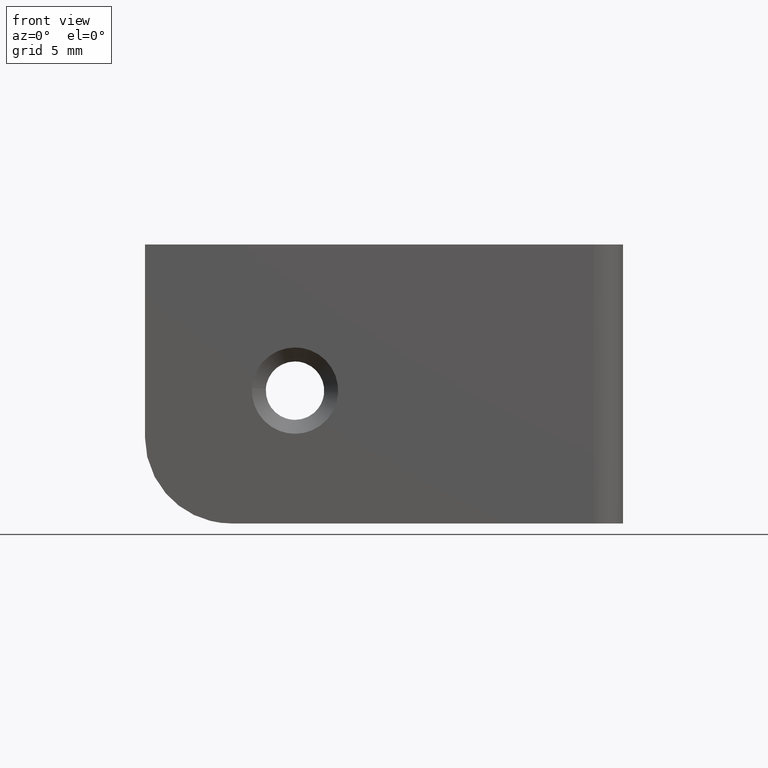
[diagram: clean part render]
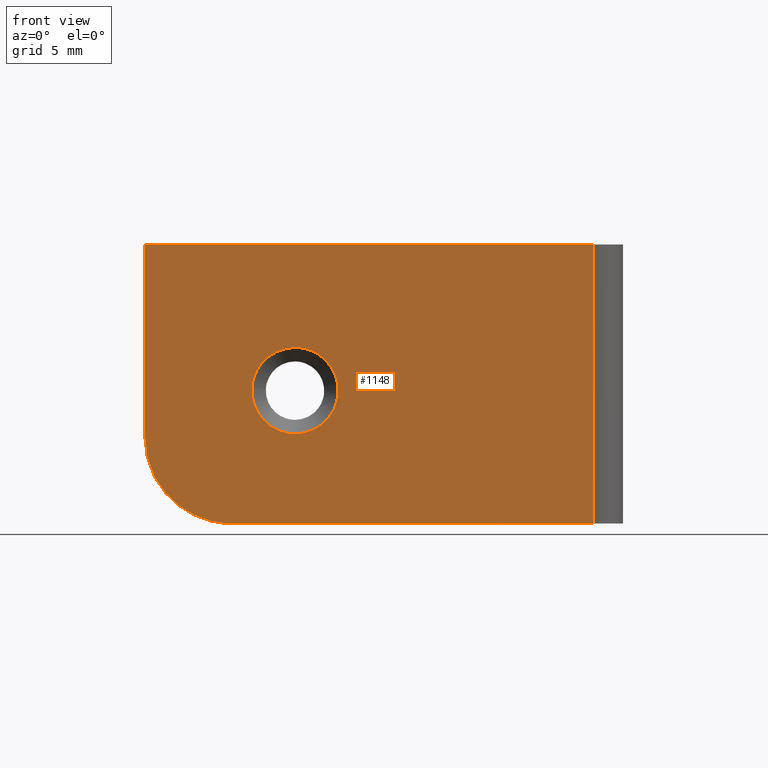
[diagram: same view with one face highlighted and labeled with its STEP entity id]
A machine part, front view. The second image highlights one B-rep face of the part: STEP entity #1148.
In plain terms, the highlighted face is a freeform B-spline surface patch.
Its self-contained STEP definition (entity closure, byte-faithful):
#83=CARTESIAN_POINT('',(-23.557241583184549,-4.230380E-012,13.042466631012569));
#84=VERTEX_POINT('',#83);
#90=CARTESIAN_POINT('',(-24.699999999999999,3.422775E-015,13.250000000000000));
#91=VERTEX_POINT('',#90);
#92=CARTESIAN_POINT('',(-23.557241583184556,-4.230380E-012,13.042466631012568));
#93=CARTESIAN_POINT('',(-24.109775995237399,3.422775E-015,13.249999999999996));
#94=CARTESIAN_POINT('',(-24.699999999999999,3.422775E-015,13.250000000000000));
#102=(BOUNDED_CURVE()B_SPLINE_CURVE(2,(#92,#93,#94),.UNSPECIFIED.,.F.,.U.)B_SPLINE_CURVE_WITH_KNOTS((3,3),(0.440284170894616,0.500000000000000),.UNSPECIFIED.)CURVE()GEOMETRIC_REPRESENTATION_ITEM()RATIONAL_B_SPLINE_CURVE((0.893499554630512,0.930038554396840,1.0))REPRESENTATION_ITEM(''));
#103=EDGE_CURVE('',#84,#91,#102,.T.);
#105=CARTESIAN_POINT('',(-27.943938094879609,-1.585975E-011,10.198407753608370));
#106=VERTEX_POINT('',#105);
#107=CARTESIAN_POINT('',(-24.699999999999999,3.422775E-015,13.250000000000000));
#108=CARTESIAN_POINT('',(-27.757294717218581,3.422775E-015,13.250000000000004));
#109=CARTESIAN_POINT('',(-27.943938094879623,-1.585975E-011,10.198407753608365));
#117=(BOUNDED_CURVE()B_SPLINE_CURVE(2,(#107,#108,#109),.UNSPECIFIED.,.F.,.U.)B_SPLINE_CURVE_WITH_KNOTS((3,3),(0.500000000000000,0.739332962229297),.UNSPECIFIED.)CURVE()GEOMETRIC_REPRESENTATION_ITEM()RATIONAL_B_SPLINE_CURVE((1.0,0.719603993298011,0.976072041646045))REPRESENTATION_ITEM(''));
#118=EDGE_CURVE('',#91,#106,#117,.T.);
#213=CARTESIAN_POINT('',(-24.699999999999999,3.422775E-015,6.750000000000001));
#214=VERTEX_POINT('',#213);
#215=CARTESIAN_POINT('',(-27.943938094879609,-1.585975E-011,10.198407753608365));
#216=CARTESIAN_POINT('',(-27.950000000000003,3.422775E-015,10.099296480839859));
#217=CARTESIAN_POINT('',(-27.949999999999999,3.422775E-015,10.0));
#218=CARTESIAN_POINT('',(-27.949999999999999,3.422775E-015,6.750000000000001));
#219=CARTESIAN_POINT('',(-24.699999999999999,3.422775E-015,6.750000000000001));
#227=(BOUNDED_CURVE()B_SPLINE_CURVE(2,(#215,#216,#217,#218,#219),.UNSPECIFIED.,.F.,.U.)B_SPLINE_CURVE_WITH_KNOTS((3,2,3),(0.739332962229297,0.750000000000000,1.0),.UNSPECIFIED.)CURVE()GEOMETRIC_REPRESENTATION_ITEM()RATIONAL_B_SPLINE_CURVE((0.976072041646045,0.987502787888537,1.0,0.707106781186547,1.0))REPRESENTATION_ITEM(''));
#228=EDGE_CURVE('',#106,#214,#227,.T.);
#230=CARTESIAN_POINT('',(-24.699999999999999,3.422775E-015,6.750000000000001));
#231=CARTESIAN_POINT('',(-21.449999999999996,3.422775E-015,6.750000000000001));
#232=CARTESIAN_POINT('',(-21.449999999999999,3.422775E-015,10.0));
#233=CARTESIAN_POINT('',(-21.449999999999992,3.422775E-015,12.250981185941505));
#234=CARTESIAN_POINT('',(-23.557241583184549,-4.230380E-012,13.042466631012569));
#242=(BOUNDED_CURVE()B_SPLINE_CURVE(2,(#230,#231,#232,#233,#234),.UNSPECIFIED.,.F.,.U.)B_SPLINE_CURVE_WITH_KNOTS((3,2,3),(0.0,0.250000000000000,0.440284170894616),.UNSPECIFIED.)CURVE()GEOMETRIC_REPRESENTATION_ITEM()RATIONAL_B_SPLINE_CURVE((1.0,0.707106781186547,1.0,0.777068226789707,0.893499554630512))REPRESENTATION_ITEM(''));
#243=EDGE_CURVE('',#214,#84,#242,.T.);
#742=CARTESIAN_POINT('',(-2.200000000000000,0.0,21.0));
#743=VERTEX_POINT('',#742);
#759=CARTESIAN_POINT('',(-2.200000000000000,0.0,0.0));
#760=VERTEX_POINT('',#759);
#761=CARTESIAN_POINT('',(-2.200000000000000,0.0,0.0));
#762=CARTESIAN_POINT('',(-2.200000000000000,0.0,21.0));
#763=QUASI_UNIFORM_CURVE('',1,(#761,#762),.UNSPECIFIED.,.F.,.U.);
#764=EDGE_CURVE('',#760,#743,#763,.T.);
#944=CARTESIAN_POINT('',(-36.0,0.0,6.499999999999799));
#945=VERTEX_POINT('',#944);
#946=CARTESIAN_POINT('',(-36.0,0.0,21.0));
#947=VERTEX_POINT('',#946);
#948=CARTESIAN_POINT('',(-36.0,0.0,6.499999999999799));
#949=CARTESIAN_POINT('',(-36.0,0.0,21.0));
#950=QUASI_UNIFORM_CURVE('',1,(#948,#949),.UNSPECIFIED.,.F.,.U.);
#951=EDGE_CURVE('',#945,#947,#950,.T.);
#989=CARTESIAN_POINT('',(-29.500000000000000,0.0,0.0));
#990=VERTEX_POINT('',#989);
#991=CARTESIAN_POINT('',(-36.0,0.0,6.499999999999799));
#992=CARTESIAN_POINT('',(-36.0,0.0,-2.003606E-013));
#993=CARTESIAN_POINT('',(-29.500000000000000,0.0,0.0));
#1001=(BOUNDED_CURVE()B_SPLINE_CURVE(2,(#991,#992,#993),.UNSPECIFIED.,.F.,.U.)CURVE()GEOMETRIC_REPRESENTATION_ITEM()QUASI_UNIFORM_CURVE()RATIONAL_B_SPLINE_CURVE((1.0,0.707106781186547,1.0))REPRESENTATION_ITEM(''));
#1002=EDGE_CURVE('',#945,#990,#1001,.T.);
#1039=CARTESIAN_POINT('',(-2.200000000000000,0.0,0.0));
#1040=CARTESIAN_POINT('',(-29.500000000000000,0.0,0.0));
#1041=QUASI_UNIFORM_CURVE('',1,(#1039,#1040),.UNSPECIFIED.,.F.,.U.);
#1042=EDGE_CURVE('',#760,#990,#1041,.T.);
#1065=CARTESIAN_POINT('',(-36.0,0.0,21.0));
#1066=CARTESIAN_POINT('',(-2.200000000000000,0.0,21.0));
#1067=QUASI_UNIFORM_CURVE('',1,(#1065,#1066),.UNSPECIFIED.,.F.,.U.);
#1068=EDGE_CURVE('',#947,#743,#1067,.T.);
#1130=CARTESIAN_POINT('',(-37.688309934489041,0.0,22.048949959297929));
#1131=CARTESIAN_POINT('',(-0.511689158924312,0.0,22.048949959297929));
#1132=CARTESIAN_POINT('',(-37.688309934489041,0.0,-1.048950522561820));
#1133=CARTESIAN_POINT('',(-0.511689158924312,0.0,-1.048950522561820));
#1134=B_SPLINE_SURFACE_WITH_KNOTS('',1,1,((#1130,#1132),(#1131,#1133)),.UNSPECIFIED.,.F.,.F.,.U.,(2,2),(2,2),(0.0,37.176620775564729),(0.0,23.097900481859750),.UNSPECIFIED.);
#1135=ORIENTED_EDGE('',*,*,#1042,.F.);
#1136=ORIENTED_EDGE('',*,*,#764,.T.);
#1137=ORIENTED_EDGE('',*,*,#1068,.F.);
#1138=ORIENTED_EDGE('',*,*,#951,.F.);
#1139=ORIENTED_EDGE('',*,*,#1002,.T.);
#1140=EDGE_LOOP('',(#1135,#1136,#1137,#1138,#1139));
#1141=FACE_OUTER_BOUND('',#1140,.T.);
#1142=ORIENTED_EDGE('',*,*,#118,.F.);
#1143=ORIENTED_EDGE('',*,*,#103,.F.);
#1144=ORIENTED_EDGE('',*,*,#243,.F.);
#1145=ORIENTED_EDGE('',*,*,#228,.F.);
#1146=EDGE_LOOP('',(#1142,#1143,#1144,#1145));
#1147=FACE_BOUND('',#1146,.T.);
#1148=ADVANCED_FACE('',(#1141,#1147),#1134,.F.);